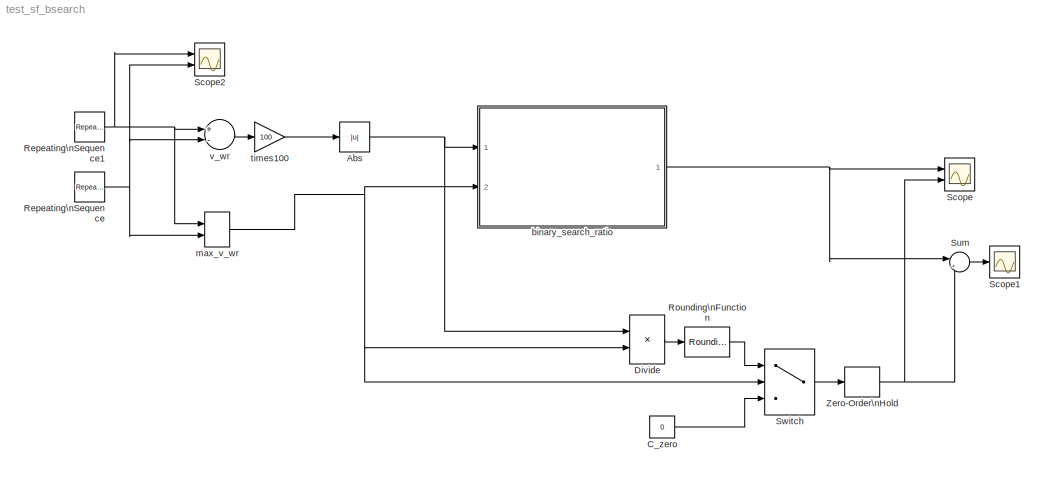
MODEL test_sf_bsearch
KIND model
BLOCK [Abs] Abs
  SID = 136
  SaturateOnIntegerOverflow = off
BLOCK [Constant] C_zero
  SID = 129
  Value = 0
BLOCK [Product] Divide
  InputSameDT = off
  Inputs = */
  OutDataTypeStr = Inherit: Inherit via internal rule
  Ports = [2, 1]
  RndMeth = Floor
  SID = 130
  SaturateOnIntegerOverflow = off
BLOCK [Reference] Repeating\nSequence  REF=simulink/Sources/Repeating\nSequence
  FunctionWithSeparateData = off
  GeneratePreprocessorConditionals = off
  Ports = [0, 1]
  RTWMemSecDataConstants = Inherit from model
  RTWMemSecDataInternal = Inherit from model
  RTWMemSecDataParameters = Inherit from model
  RTWMemSecFuncExecute = Inherit from model
  RTWMemSecFuncInitTerm = Inherit from model
  SID = 142
  ShowPortLabels = FromPortIcon
  SourceBlock = simulink/Sources/Repeating\nSequence
  SourceType = Repeating table
  SystemSampleTime = -1
  rep_seq_t = [0 5 10]
  rep_seq_y = [157 11 97]
BLOCK [Reference] Repeating\nSequence1  REF=simulink/Sources/Repeating\nSequence
  FunctionWithSeparateData = off
  GeneratePreprocessorConditionals = off
  Ports = [0, 1]
  RTWMemSecDataConstants = Inherit from model
  RTWMemSecDataInternal = Inherit from model
  RTWMemSecDataParameters = Inherit from model
  RTWMemSecFuncExecute = Inherit from model
  RTWMemSecFuncInitTerm = Inherit from model
  SID = 144
  ShowPortLabels = FromPortIcon
  SourceBlock = simulink/Sources/Repeating\nSequence
  SourceType = Repeating table
  SystemSampleTime = -1
  rep_seq_t = [0 4 8]
  rep_seq_y = [0 99 0]
BLOCK [Rounding] Rounding\nFunction
  Operator = round
  SID = 132
BLOCK [Scope] Scope
  DataFormat = StructureWithTime
  Floating = off
  NumInputPorts = 2
  Ports = [2]
  SID = 126
  SampleTime = 0
  YMax = 5~5
  YMin = -5~-5
  ZoomMode = yonly
BLOCK [Scope] Scope1
  DataFormat = StructureWithTime
  Floating = off
  NumInputPorts = 1
  Ports = [1]
  SID = 139
  SampleTime = 0
  SaveName = ScopeData1
BLOCK [Scope] Scope2
  DataFormat = StructureWithTime
  Floating = off
  NumInputPorts = 2
  Ports = [2]
  SID = 145
  SampleTime = 0
  SaveName = ScopeData2
  YMax = 5~5
  YMin = -5~-5
  ZoomMode = yonly
BLOCK [Sum] Sum
  IconShape = round
  InputSameDT = off
  Inputs = |+-
  OutDataTypeStr = Inherit: Inherit via internal rule
  Ports = [2, 1]
  SID = 138
  SaturateOnIntegerOverflow = off
BLOCK [Switch] Switch
  Criteria = u2 > Threshold
  InputSameDT = off
  SID = 131
  SaturateOnIntegerOverflow = off
BLOCK [ZeroOrderHold] Zero-Order\nHold
  SID = 137
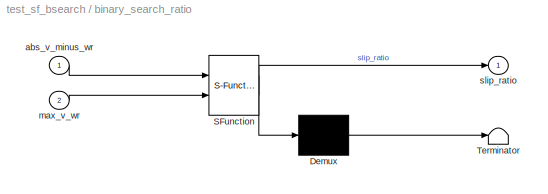
BLOCK [SubSystem] binary_search_ratio
  ErrorFcn = Stateflow.Translate.translate
  FunctionWithSeparateData = off
  MaskDescription = Stateflow diagram
  MaskDisplay = plot(sf('Private','sfblk','xIcon'),sf('Private','sfblk','yIcon'));text(0.5,0,sf('Private', 'sfblk', 'tIcon'),'HorizontalAl','Center','VerticalAl','Bottom');
  MaskHideContents = off
  MaskIconFrame = off
  MaskIconOpaque = off
  MaskIconRotate = none
  MaskIconUnits = autoscale
  MaskPortRotate = default
  MaskSelfModifiable = on
  MaskType = Stateflow
  MinAlgLoopOccurrences = off
  Opaque = off
  PermitHierarchicalResolution = ExplicitOnly
  Ports = [2, 1]
  PropExecContextOutsideSubsystem = off
  RTWSystemCode = Auto
  RequestExecContextInheritance = off
  SID = 125
  TreatAsAtomicUnit = on
BLOCK [Demux] binary_search_ratio/ Demux 
  Outputs = 1
  Ports = [1, 1]
  SID = 125::14
BLOCK [S-Function] binary_search_ratio/ SFunction 
  EnableBusSupport = on
  FunctionName = sf_sfun
  PortCounts = [2 2]
  Ports = [2, 2]
  SID = 125::13
  Tag = Stateflow S-Function test_sf_bsearch 1
BLOCK [Terminator] binary_search_ratio/ Terminator 
  SID = 125::16
BLOCK [Inport] binary_search_ratio/abs_v_minus_wr
  IconDisplay = Port number
  SID = 125::17
BLOCK [Inport] binary_search_ratio/max_v_wr
  IconDisplay = Port number
  Port = 2
  SID = 125::18
BLOCK [Outport] binary_search_ratio/slip_ratio
  IconDisplay = Port number
  SID = 125::19
BLOCK [MinMax] max_v_wr
  Function = max
  InputSameDT = off
  Inputs = 2
  Ports = [2, 1]
  SID = 133
  SaturateOnIntegerOverflow = off
BLOCK [Gain] times100
  Gain = 100
  OutDataTypeStr = Inherit: Inherit via internal rule
  ParamDataTypeStr = Inherit: Inherit via internal rule
  SID = 134
  SaturateOnIntegerOverflow = off
BLOCK [Sum] v_wr
  InputSameDT = off
  Inputs = +-
  OutDataTypeStr = Inherit: Inherit via internal rule
  Ports = [2, 1]
  SID = 135
  SaturateOnIntegerOverflow = off
NET Abs:1 -> Divide:1, binary_search_ratio:1
LINE C_zero:1 -> Switch:3
LINE Divide:1 -> Rounding\nFunction:1
NET Repeating\nSequence1:1 -> Scope2:1, max_v_wr:1, v_wr:1
NET Repeating\nSequence:1 -> Scope2:2, max_v_wr:2, v_wr:2
LINE Rounding\nFunction:1 -> Switch:1
LINE Sum:1 -> Scope1:1
LINE Switch:1 -> Zero-Order\nHold:1
NET Zero-Order\nHold:1 -> Scope:2, Sum:2
LINE binary_search_ratio/ Demux :1 -> binary_search_ratio/ Terminator :1
LINE binary_search_ratio/ SFunction :1 -> binary_search_ratio/ Demux :1
LINE binary_search_ratio/ SFunction :2 -> binary_search_ratio/slip_ratio:1
LINE binary_search_ratio/abs_v_minus_wr:1 -> binary_search_ratio/ SFunction :1
LINE binary_search_ratio/max_v_wr:1 -> binary_search_ratio/ SFunction :2
NET binary_search_ratio:1 -> Scope:1, Sum:1
NET max_v_wr:1 -> Divide:2, Switch:2, binary_search_ratio:2
LINE times100:1 -> Abs:1
LINE v_wr:1 -> times100:1
note: NET lines group one-source signal fan-out (src -> all destinations, sorted); 1:1 wires keep LINE
CHART binary_search_ratio states=0 transitions=25
